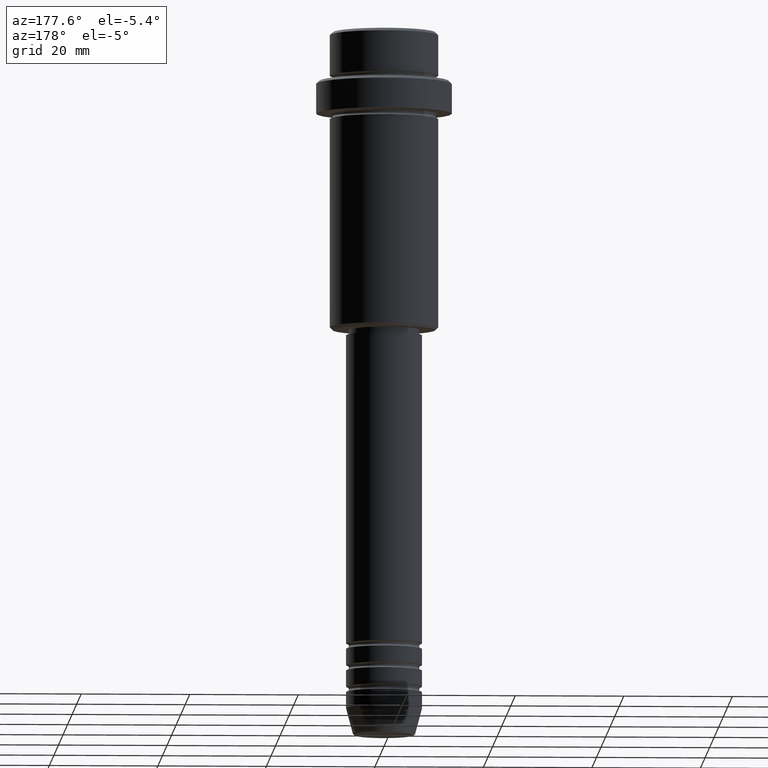
[diagram: clean part render]
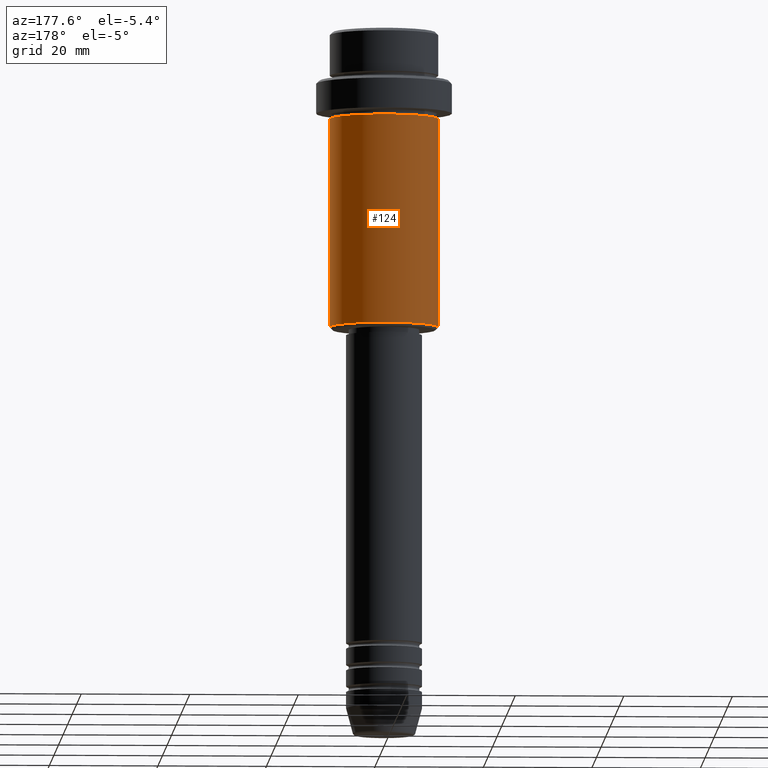
[diagram: same view with one face highlighted and labeled with its STEP entity id]
A machine part, auxiliary view. The second image highlights one B-rep face of the part: STEP entity #124.
In plain terms, the highlighted cylindrical surface (partial cylindrical patch) has radius 10 mm, axis along (-0, -0, 1).
Its self-contained STEP definition (entity closure, byte-faithful):
#3 = VERTEX_POINT ( 'NONE', #791 ) ;
#28 = ORIENTED_EDGE ( 'NONE', *, *, #1140, .F. ) ;
#89 = CARTESIAN_POINT ( 'NONE',  ( 0.000000000000000000, 0.000000000000000000, 0.000000000000000000 ) ) ;
#124 = ADVANCED_FACE ( 'NONE', ( #1164 ), #1052, .T. ) ;
#145 = CIRCLE ( 'NONE', #409, 10.00000000000000000 ) ;
#192 = VECTOR ( 'NONE', #871, 1000.000000000000000 ) ;
#224 = CARTESIAN_POINT ( 'NONE',  ( 0.000000000000000000, 0.000000000000000000, -16.00000000000000000 ) ) ;
#230 = CARTESIAN_POINT ( 'NONE',  ( 10.00000000000000000, 0.000000000000000000, -16.00000000000000000 ) ) ;
#239 = DIRECTION ( 'NONE',  ( -1.000000000000000000, 0.000000000000000000, 0.000000000000000000 ) ) ;
#252 = EDGE_CURVE ( 'NONE', #637, #781, #887, .T. ) ;
#271 = AXIS2_PLACEMENT_3D ( 'NONE', #89, #1286, #328 ) ;
#328 = DIRECTION ( 'NONE',  ( 1.000000000000000000, 0.000000000000000000, 0.000000000000000000 ) ) ;
#373 = EDGE_LOOP ( 'NONE', ( #1304, #894, #28, #1407 ) ) ;
#409 = AXIS2_PLACEMENT_3D ( 'NONE', #641, #1312, #239 ) ;
#442 = CARTESIAN_POINT ( 'NONE',  ( -10.00000000000000000, 1.224646799147353256E-15, -54.49999999999999289 ) ) ;
#636 = DIRECTION ( 'NONE',  ( 1.000000000000000000, 0.000000000000000000, 0.000000000000000000 ) ) ;
#637 = VERTEX_POINT ( 'NONE', #442 ) ;
#641 = CARTESIAN_POINT ( 'NONE',  ( 0.000000000000000000, 0.000000000000000000, -54.49999999999999289 ) ) ;
#668 = DIRECTION ( 'NONE',  ( -0.000000000000000000, -0.000000000000000000, 1.000000000000000000 ) ) ;
#778 = CARTESIAN_POINT ( 'NONE',  ( -10.00000000000000000, 1.224646799147353256E-15, -16.00000000000000000 ) ) ;
#781 = VERTEX_POINT ( 'NONE', #778 ) ;
#791 = CARTESIAN_POINT ( 'NONE',  ( 10.00000000000000000, 0.000000000000000000, -54.49999999999999289 ) ) ;
#871 = DIRECTION ( 'NONE',  ( -0.000000000000000000, -0.000000000000000000, 1.000000000000000000 ) ) ;
#887 = LINE ( 'NONE', #1008, #192 ) ;
#894 = ORIENTED_EDGE ( 'NONE', *, *, #252, .T. ) ;
#902 = LINE ( 'NONE', #1336, #1278 ) ;
#1004 = AXIS2_PLACEMENT_3D ( 'NONE', #224, #1172, #636 ) ;
#1008 = CARTESIAN_POINT ( 'NONE',  ( -10.00000000000000000, 1.224646799147353256E-15, 0.000000000000000000 ) ) ;
#1052 = CYLINDRICAL_SURFACE ( 'NONE', #271, 10.00000000000000000 ) ;
#1086 = CIRCLE ( 'NONE', #1004, 10.00000000000000000 ) ;
#1140 = EDGE_CURVE ( 'NONE', #1144, #781, #1086, .T. ) ;
#1144 = VERTEX_POINT ( 'NONE', #230 ) ;
#1161 = EDGE_CURVE ( 'NONE', #3, #637, #145, .T. ) ;
#1164 = FACE_OUTER_BOUND ( 'NONE', #373, .T. ) ;
#1172 = DIRECTION ( 'NONE',  ( -0.000000000000000000, -0.000000000000000000, 1.000000000000000000 ) ) ;
#1186 = EDGE_CURVE ( 'NONE', #3, #1144, #902, .T. ) ;
#1278 = VECTOR ( 'NONE', #668, 1000.000000000000000 ) ;
#1286 = DIRECTION ( 'NONE',  ( -0.000000000000000000, -0.000000000000000000, 1.000000000000000000 ) ) ;
#1304 = ORIENTED_EDGE ( 'NONE', *, *, #1161, .T. ) ;
#1312 = DIRECTION ( 'NONE',  ( -0.000000000000000000, -0.000000000000000000, 1.000000000000000000 ) ) ;
#1336 = CARTESIAN_POINT ( 'NONE',  ( 10.00000000000000000, 0.000000000000000000, 0.000000000000000000 ) ) ;
#1407 = ORIENTED_EDGE ( 'NONE', *, *, #1186, .F. ) ;